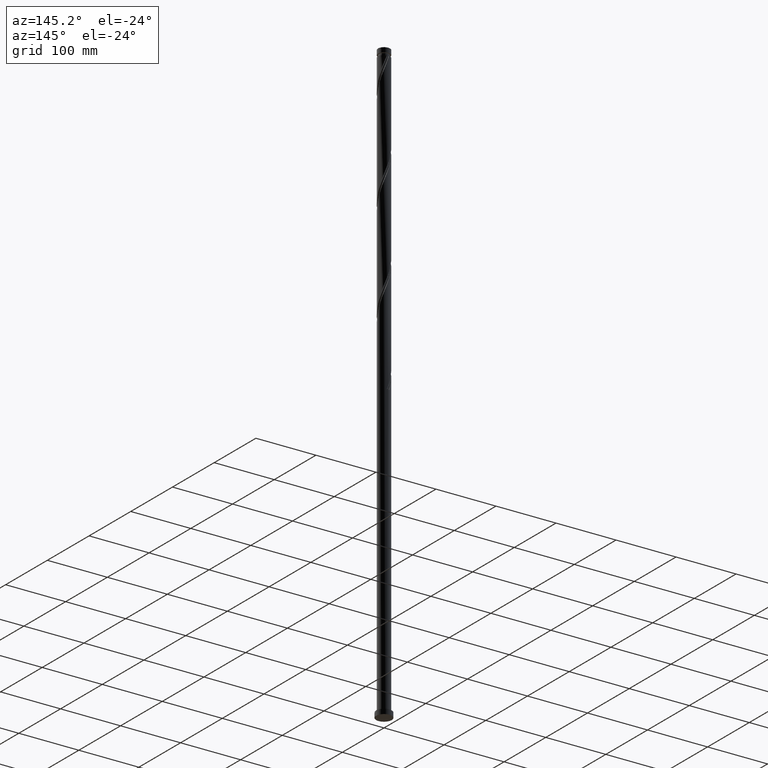
[diagram: clean part render]
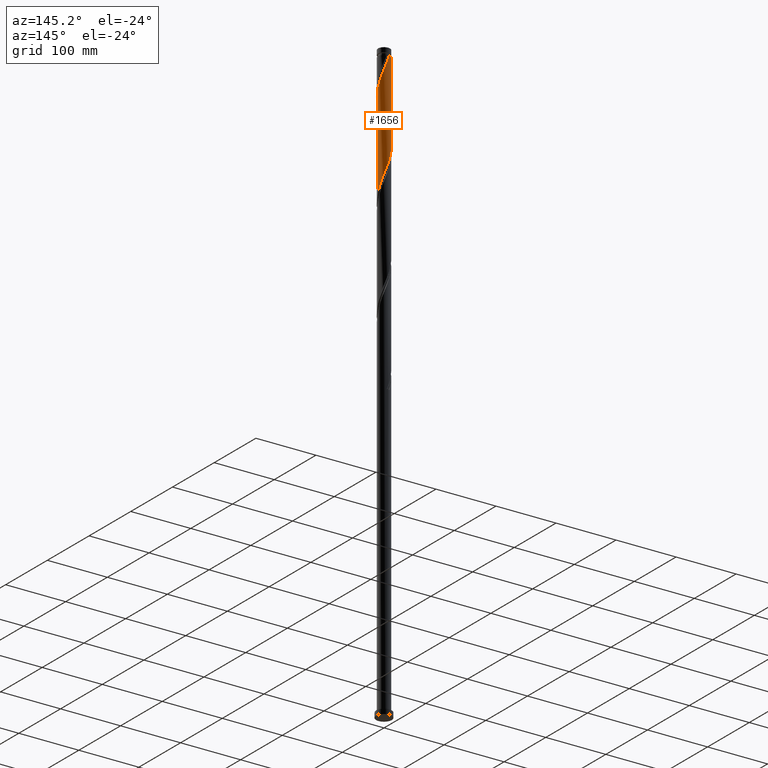
[diagram: same view with one face highlighted and labeled with its STEP entity id]
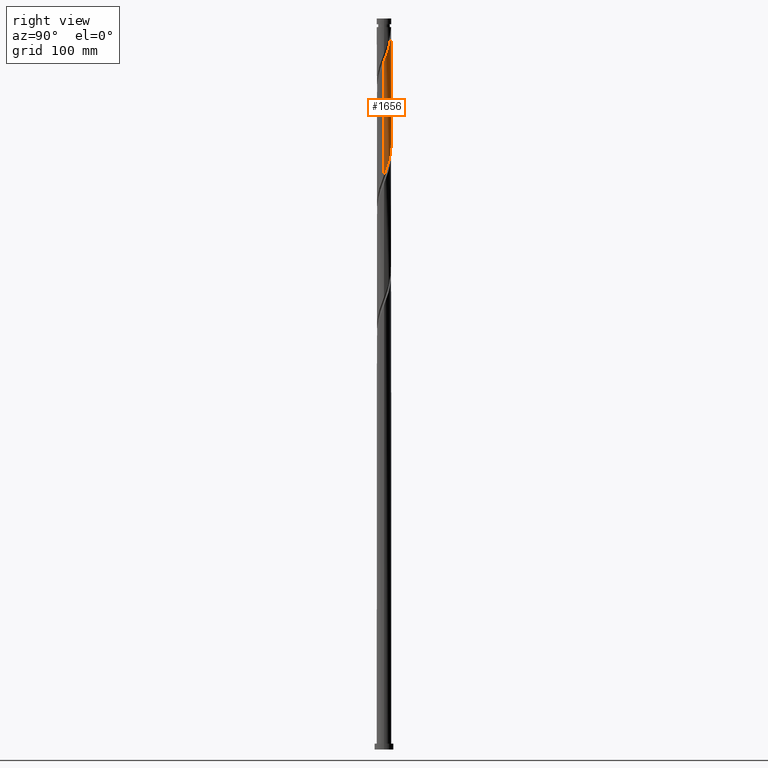
[diagram: same view with one face highlighted and labeled with its STEP entity id]
A machine part, auxiliary view. The second image highlights one B-rep face of the part: STEP entity #1656.
A second angle (right view) of the same face is appended — the face is thin or edge-on in the first view.
In plain terms, the highlighted cylindrical surface (edge-blend (fillet) strip) has radius 10 mm, axis along (-0, -0, -1).
Its self-contained STEP definition (entity closure, byte-faithful):
#11 = CARTESIAN_POINT ( 'NONE',  ( 9.643385580861325579, 2.761251601094518282, 948.6628201201459660 ) ) ;
#14 = CARTESIAN_POINT ( 'NONE',  ( 0.000000000000000000, 0.000000000000000000, 988.2461534534795646 ) ) ;
#16 = AXIS2_PLACEMENT_3D ( 'NONE', #892, #336, #115 ) ;
#20 = CARTESIAN_POINT ( 'NONE',  ( -0.4324172239434393439, 9.990646392723412816, 984.0794867868125948 ) ) ;
#49 = DIRECTION ( 'NONE',  ( -0.000000000000000000, -0.000000000000000000, -1.000000000000000000 ) ) ;
#91 = CARTESIAN_POINT ( 'NONE',  ( 3.498532738731969349, 9.368045082941296897, 817.4128201201464208 ) ) ;
#109 = CARTESIAN_POINT ( 'NONE',  ( -6.758688661379365747, 7.370218964083908197, 846.5794867868129359 ) ) ;
#115 = DIRECTION ( 'NONE',  ( -1.000000000000000000, 0.000000000000000000, 0.000000000000000000 ) ) ;
#121 = CARTESIAN_POINT ( 'NONE',  ( 9.098044428369604475, 4.150371980848564846, 796.5794867868130495 ) ) ;
#134 = CARTESIAN_POINT ( 'NONE',  ( 8.336771183575205413, 5.522521727681127146, 800.7461534534795646 ) ) ;
#154 = EDGE_CURVE ( 'NONE', #631, #995, #1797, .T. ) ;
#184 = CARTESIAN_POINT ( 'NONE',  ( 10.00000000000001421, 0.2163097758064020659, 941.8402208914314997 ) ) ;
#186 = CARTESIAN_POINT ( 'NONE',  ( -1.135787973490342662, 9.935289914203547568, 829.9128201201463071 ) ) ;
#290 = CARTESIAN_POINT ( 'NONE',  ( 10.00000000000000355, 1.298574741823021473E-14, 785.2260983255941937 ) ) ;
#291 = CARTESIAN_POINT ( 'NONE',  ( -10.00000000000000355, 0.2163097758063646792, 867.9854193488612282 ) ) ;
#307 = CARTESIAN_POINT ( 'NONE',  ( 5.606076356147837281, 8.318131025341633844, 811.1628201201459660 ) ) ;
#308 = CARTESIAN_POINT ( 'NONE',  ( -2.676026301552623554, 9.635293624659222900, 834.0794867868127085 ) ) ;
#321 = CARTESIAN_POINT ( 'NONE',  ( -9.799999999999997158, 1.989974874213252809, 863.2461534534794509 ) ) ;
#336 = DIRECTION ( 'NONE',  ( -0.000000000000000000, -0.000000000000000000, -1.000000000000000000 ) ) ;
#372 = CARTESIAN_POINT ( 'NONE',  ( 10.00000000000001776, -5.074889795630169851E-16, 941.2662085813650492 ) ) ;
#467 = EDGE_CURVE ( 'NONE', #1571, #995, #941, .T. ) ;
#478 = CARTESIAN_POINT ( 'NONE',  ( 4.235813876369419972, 9.092704585021287755, 815.3294867868127085 ) ) ;
#479 = CARTESIAN_POINT ( 'NONE',  ( -9.643385580861313144, 2.761251601094514285, 861.1628201201461934 ) ) ;
#589 = CARTESIAN_POINT ( 'NONE',  ( 7.338737473523957888, 6.838298630537159362, 961.1628201201460797 ) ) ;
#623 = EDGE_CURVE ( 'NONE', #756, #1215, #1054, .T. ) ;
#631 = VERTEX_POINT ( 'NONE', #2092 ) ;
#659 = CARTESIAN_POINT ( 'NONE',  ( 6.838298630537154921, 7.338737473523941901, 806.9961534534796783 ) ) ;
#660 = CARTESIAN_POINT ( 'NONE',  ( -10.00000000000000355, -1.223944009534342027E-14, 868.5594316589275650 ) ) ;
#672 = CARTESIAN_POINT ( 'NONE',  ( -8.705417805181461688, 4.920945116258628182, 854.9128201201463071 ) ) ;
#682 = CARTESIAN_POINT ( 'NONE',  ( -4.866403606127465586, 8.771403069519749351, 840.3294867868128222 ) ) ;
#692 = CARTESIAN_POINT ( 'NONE',  ( 9.424685787219461375, 3.434340355569663661, 794.4961534534796783 ) ) ;
#742 = CARTESIAN_POINT ( 'NONE',  ( -10.00000000000000178, 0.000000000000000000, 1000.000000000000000 ) ) ;
#756 = VERTEX_POINT ( 'NONE', #1250 ) ;
#766 = DIRECTION ( 'NONE',  ( -0.000000000000000000, -0.000000000000000000, -1.000000000000000000 ) ) ;
#782 = ORIENTED_EDGE ( 'NONE', *, *, #2164, .F. ) ;
#783 = CARTESIAN_POINT ( 'NONE',  ( 1.917712247535589665, 9.845901462098996859, 977.8294867868128222 ) ) ;
#807 = AXIS2_PLACEMENT_3D ( 'NONE', #14, #766, #1534 ) ;
#825 = ORIENTED_EDGE ( 'NONE', *, *, #154, .F. ) ;
#862 = CARTESIAN_POINT ( 'NONE',  ( -5.522521727681128034, 8.336771183575205413, 842.4128201201460797 ) ) ;
#879 = CARTESIAN_POINT ( 'NONE',  ( 10.00000000000001776, -5.074889795630168865E-16, 941.2662085813650492 ) ) ;
#892 = CARTESIAN_POINT ( 'NONE',  ( 0.000000000000000000, 0.000000000000000000, 1000.000000000000000 ) ) ;
#918 = CARTESIAN_POINT ( 'NONE',  ( -0.3538636994451062057, 10.02467836630811426, 827.8294867868129359 ) ) ;
#931 = CARTESIAN_POINT ( 'NONE',  ( -1.917712247535578785, 9.845901462098982648, 831.9961534534795646 ) ) ;
#940 = CARTESIAN_POINT ( 'NONE',  ( 1.989974874213254807, 9.799999999999997158, 821.5794867868125948 ) ) ;
#941 = LINE ( 'NONE', #1700, #1758 ) ;
#948 = CARTESIAN_POINT ( 'NONE',  ( 4.866403606127479797, 8.771403069519754681, 969.4961534534794509 ) ) ;
#988 = CARTESIAN_POINT ( 'NONE',  ( 3.434340355569672987, 9.424685787219470257, 973.6628201201463071 ) ) ;
#995 = VERTEX_POINT ( 'NONE', #1614 ) ;
#1002 = ORIENTED_EDGE ( 'NONE', *, *, #623, .T. ) ;
#1054 = CIRCLE ( 'NONE', #807, 9.999999999999895195 ) ;
#1079 = CARTESIAN_POINT ( 'NONE',  ( -9.368045082941300450, 3.498532738731968905, 859.0794867868129359 ) ) ;
#1131 = DIRECTION ( 'NONE',  ( -0.000000000000000000, -0.000000000000000000, -1.000000000000000000 ) ) ;
#1137 = CARTESIAN_POINT ( 'NONE',  ( 2.676026301552629771, 9.635293624659231781, 975.7461534534794509 ) ) ;
#1141 = CARTESIAN_POINT ( 'NONE',  ( 9.956614419138704264, 1.218698147331985560, 944.4961534534795646 ) ) ;
#1149 = CARTESIAN_POINT ( 'NONE',  ( -1.218698147331984893, 9.956614419138704264, 986.1628201201459660 ) ) ;
#1162 = CARTESIAN_POINT ( 'NONE',  ( 4.150371980848576392, 9.098044428369609804, 971.5794867868125948 ) ) ;
#1175 = ORIENTED_EDGE ( 'NONE', *, *, #2398, .F. ) ;
#1176 = CARTESIAN_POINT ( 'NONE',  ( 8.318131025341649831, 5.606076356147839057, 956.9961534534794509 ) ) ;
#1215 = VERTEX_POINT ( 'NONE', #1698 ) ;
#1239 = CARTESIAN_POINT ( 'NONE',  ( -7.828434249432788761, 6.222187493342492104, 850.7461534534795646 ) ) ;
#1247 = CYLINDRICAL_SURFACE ( 'NONE', #16, 10.00000000000000178 ) ;
#1250 = CARTESIAN_POINT ( 'NONE',  ( -9.999999999999895195, 0.000000000000000000, 988.2461534534795646 ) ) ;
#1266 = CARTESIAN_POINT ( 'NONE',  ( 6.222187493342493880, 7.828434249432788761, 809.0794867868128222 ) ) ;
#1276 = CARTESIAN_POINT ( 'NONE',  ( 9.635293624659224676, 2.676026301552623110, 792.4128201201460797 ) ) ;
#1333 = CARTESIAN_POINT ( 'NONE',  ( 9.990646392723412816, 0.4324172239434397325, 942.4128201201463071 ) ) ;
#1365 = CARTESIAN_POINT ( 'NONE',  ( 8.705417805181475899, 4.920945116258629959, 954.9128201201461934 ) ) ;
#1391 = CARTESIAN_POINT ( 'NONE',  ( 6.758688661379377294, 7.370218964083912638, 963.2461534534793373 ) ) ;
#1428 = CARTESIAN_POINT ( 'NONE',  ( -9.990646392723402158, 0.4324172239434433962, 867.4128201201463071 ) ) ;
#1440 = CARTESIAN_POINT ( 'NONE',  ( -4.150371980848566622, 9.098044428369604475, 838.2461534534795646 ) ) ;
#1497 = CARTESIAN_POINT ( 'NONE',  ( 2.761251601094519614, 9.643385580861311368, 819.4961534534795646 ) ) ;
#1531 = CARTESIAN_POINT ( 'NONE',  ( 9.368045082941311108, 3.498532738731969349, 950.7461534534794509 ) ) ;
#1534 = DIRECTION ( 'NONE',  ( -1.000000000000000000, 0.000000000000000000, 0.000000000000000000 ) ) ;
#1571 = VERTEX_POINT ( 'NONE', #879 ) ;
#1614 = CARTESIAN_POINT ( 'NONE',  ( 10.00000000000000355, 1.298574741823021473E-14, 785.2260983255941937 ) ) ;
#1616 = CARTESIAN_POINT ( 'NONE',  ( 9.845901462098982648, 1.917712247535581227, 790.3294867868127085 ) ) ;
#1617 =( BOUNDED_CURVE ( )  B_SPLINE_CURVE ( 2, ( #372, #184, #1333, #1141, #1889, #11, #1531, #2279, #1365, #1176, #1745, #589, #1391, #2126, #2141, #948, #1162, #988, #1137, #783, #2112, #1706, #20, #1149, #1885 ),
 .UNSPECIFIED., .F., .T. ) 
 B_SPLINE_CURVE_WITH_KNOTS ( ( 3, 2, 2, 2, 2, 2, 2, 2, 2, 2, 2, 2, 3 ),
 ( 0.6795283537410736763, 0.6812500000000000222, 0.6875000000000000000, 0.6937499999999999778, 0.6999999999999999556, 0.7062500000000000444, 0.7125000000000000222, 0.7187500000000000000, 0.7249999999999999778, 0.7312499999999999556, 0.7375000000000000444, 0.7437500000000000222, 0.7500000000000000000 ),
 .UNSPECIFIED. ) 
 CURVE ( )  GEOMETRIC_REPRESENTATION_ITEM ( )  RATIONAL_B_SPLINE_CURVE ( ( 0.9079722749903021972, 0.9083189438770126189, 0.9090909090909586876, 0.9062884852119839074, 0.9090909090909586876, 0.9062884852119839074, 0.9090909090909586876, 0.9062884852119839074, 0.9090909090909586876, 0.9062884852119839074, 0.9090909090909586876, 0.9062884852119839074, 0.9090909090909586876, 0.9062884852119839074, 0.9090909090909586876, 0.9062884852119839074, 0.9090909090909586876, 0.9062884852119839074, 0.9090909090909586876, 0.9062884852119839074, 0.9090909090909586876, 0.9062884852119839074, 0.9090909090909586876, 0.9062884852119839074, 0.9090909090909586876 ) ) 
 REPRESENTATION_ITEM ( '' )  );
#1650 = CARTESIAN_POINT ( 'NONE',  ( -8.318131025341637397, 5.606076356147831952, 852.8294867868130495 ) ) ;
#1656 = ADVANCED_FACE ( 'NONE', ( #1814 ), #1247, .T. ) ;
#1698 = CARTESIAN_POINT ( 'NONE',  ( -1.989974874213223277, 9.800000000000013145, 988.2461534534794509 ) ) ;
#1700 = CARTESIAN_POINT ( 'NONE',  ( 10.00000000000000178, 1.224646799147353454E-15, 1000.000000000000000 ) ) ;
#1706 = CARTESIAN_POINT ( 'NONE',  ( 0.3538636994451059281, 10.02467836630812492, 981.9961534534793373 ) ) ;
#1712 = EDGE_LOOP ( 'NONE', ( #1175, #2226, #825, #782, #1002 ) ) ;
#1745 = CARTESIAN_POINT ( 'NONE',  ( 7.828434249432801195, 6.222187493342497433, 959.0794867868127085 ) ) ;
#1748 = LINE ( 'NONE', #742, #1764 ) ;
#1758 = VECTOR ( 'NONE', #1131, 1000.000000000000000 ) ;
#1764 = VECTOR ( 'NONE', #49, 1000.000000000000000 ) ;
#1797 =( BOUNDED_CURVE ( )  B_SPLINE_CURVE ( 2, ( #660, #291, #1428, #2177, #321, #479, #1079, #2213, #672, #1650, #1239, #1808, #109, #1830, #862, #682, #1440, #2190, #308, #931, #186, #918, #2223, #2433, #940, #1497, #91, #478, #2203, #307, #1266, #659, #1819, #2212, #134, #2001, #121, #692, #1276, #1616, #1988, #2025, #290 ),
 .UNSPECIFIED., .F., .T. ) 
 B_SPLINE_CURVE_WITH_KNOTS ( ( 3, 2, 2, 2, 2, 2, 2, 2, 2, 2, 2, 2, 2, 2, 2, 2, 2, 2, 2, 2, 2, 3 ),
 ( 0.4295283537410733432, 0.4312500000000000222, 0.4375000000000000000, 0.4437499999999999778, 0.4500000000000000111, 0.4562499999999999889, 0.4625000000000000222, 0.4687500000000000000, 0.4749999999999999778, 0.4812500000000000111, 0.4874999999999999889, 0.4937500000000000222, 0.5000000000000000000, 0.5062499999999999778, 0.5124999999999999556, 0.5187500000000000444, 0.5250000000000000222, 0.5312500000000000000, 0.5374999999999999778, 0.5437499999999999556, 0.5500000000000000444, 0.5545283537410735653 ),
 .UNSPECIFIED. ) 
 CURVE ( )  GEOMETRIC_REPRESENTATION_ITEM ( )  RATIONAL_B_SPLINE_CURVE ( ( 0.9079722749902967571, 0.9083189438770070678, 0.9090909090909532475, 0.9062884852119784673, 0.9090909090909532475, 0.9062884852119784673, 0.9090909090909532475, 0.9062884852119784673, 0.9090909090909532475, 0.9062884852119784673, 0.9090909090909532475, 0.9062884852119784673, 0.9090909090909532475, 0.9062884852119784673, 0.9090909090909532475, 0.9062884852119784673, 0.9090909090909532475, 0.9062884852119784673, 0.9090909090909532475, 0.9062884852119784673, 0.9090909090909532475, 0.9062884852119784673, 0.9090909090909532475, 0.9062884852119784673, 0.9090909090909532475, 0.9062884852119784673, 0.9090909090909532475, 0.9062884852119784673, 0.9090909090909532475, 0.9062884852119784673, 0.9090909090909532475, 0.9062884852119784673, 0.9090909090909532475, 0.9062884852119784673, 0.9090909090909532475, 0.9062884852119784673, 0.9090909090909532475, 0.9062884852119784673, 0.9090909090909532475, 0.9062884852119784673, 0.9090909090909532475, 0.9070604504259245360, 0.9079722749902967571 ) ) 
 REPRESENTATION_ITEM ( '' )  );
#1808 = CARTESIAN_POINT ( 'NONE',  ( -7.338737473523941901, 6.838298630537155809, 848.6628201201463071 ) ) ;
#1814 = FACE_OUTER_BOUND ( 'NONE', #1712, .T. ) ;
#1819 = CARTESIAN_POINT ( 'NONE',  ( 7.370218964083908197, 6.758688661379363971, 804.9128201201461934 ) ) ;
#1830 = CARTESIAN_POINT ( 'NONE',  ( -6.178639849234791370, 7.902139297630660586, 844.4961534534795646 ) ) ;
#1885 = CARTESIAN_POINT ( 'NONE',  ( -1.989974874213223277, 9.800000000000013145, 988.2461534534794509 ) ) ;
#1889 = CARTESIAN_POINT ( 'NONE',  ( 9.800000000000013145, 1.989974874213251477, 946.5794867868127085 ) ) ;
#1988 = CARTESIAN_POINT ( 'NONE',  ( 9.935289914203547568, 1.135787973490340441, 788.2461534534793373 ) ) ;
#2001 = CARTESIAN_POINT ( 'NONE',  ( 8.771403069519749351, 4.866403606127467363, 798.6628201201461934 ) ) ;
#2025 = CARTESIAN_POINT ( 'NONE',  ( 10.00000000000000711, 0.5697373744642981741, 786.7379868439389838 ) ) ;
#2092 = CARTESIAN_POINT ( 'NONE',  ( -10.00000000000000355, -1.223944009534342027E-14, 868.5594316589275650 ) ) ;
#2112 = CARTESIAN_POINT ( 'NONE',  ( 1.135787973490348435, 9.935289914203565331, 979.9128201201460797 ) ) ;
#2126 = CARTESIAN_POINT ( 'NONE',  ( 6.178639849234798476, 7.902139297630671244, 965.3294867868128222 ) ) ;
#2141 = CARTESIAN_POINT ( 'NONE',  ( 5.522521727681138692, 8.336771183575210742, 967.4128201201459660 ) ) ;
#2164 = EDGE_CURVE ( 'NONE', #756, #631, #1748, .T. ) ;
#2177 = CARTESIAN_POINT ( 'NONE',  ( -9.956614419138690053, 1.218698147331992665, 865.3294867868127085 ) ) ;
#2190 = CARTESIAN_POINT ( 'NONE',  ( -3.434340355569668546, 9.424685787219459598, 836.1628201201461934 ) ) ;
#2203 = CARTESIAN_POINT ( 'NONE',  ( 4.920945116258629959, 8.705417805181461688, 813.2461534534794509 ) ) ;
#2212 = CARTESIAN_POINT ( 'NONE',  ( 7.902139297630664139, 6.178639849234786929, 802.8294867868128222 ) ) ;
#2213 = CARTESIAN_POINT ( 'NONE',  ( -9.092704585021285979, 4.235813876369422637, 856.9961534534794509 ) ) ;
#2223 = CARTESIAN_POINT ( 'NONE',  ( 0.4324172239434426745, 9.990646392723402158, 825.7461534534794509 ) ) ;
#2226 = ORIENTED_EDGE ( 'NONE', *, *, #467, .T. ) ;
#2279 = CARTESIAN_POINT ( 'NONE',  ( 9.092704585021301966, 4.235813876369419084, 952.8294867868127085 ) ) ;
#2398 = EDGE_CURVE ( 'NONE', #1571, #1215, #1617, .T. ) ;
#2433 = CARTESIAN_POINT ( 'NONE',  ( 1.218698147331991777, 9.956614419138690053, 823.6628201201461934 ) ) ;